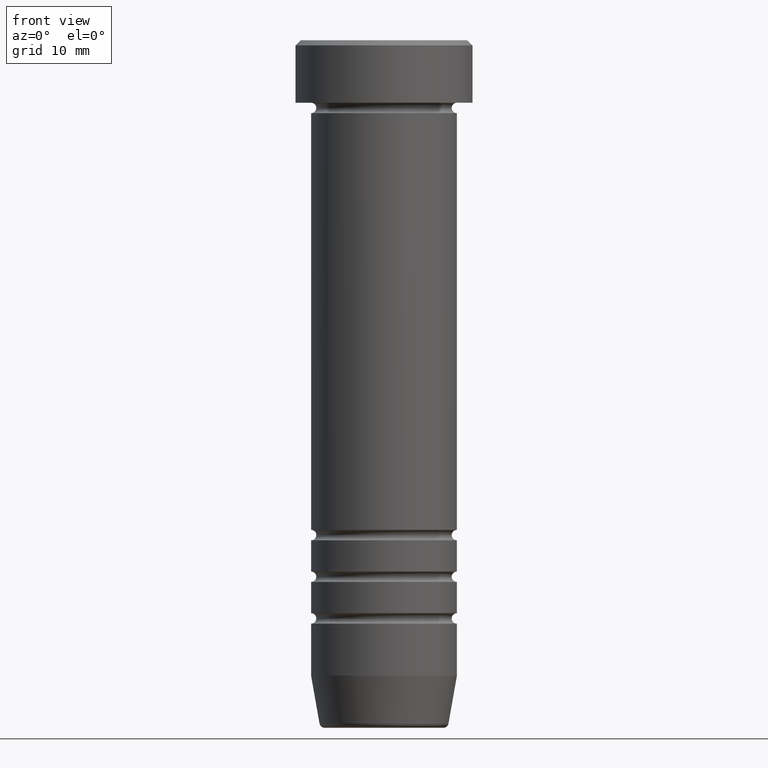
[diagram: clean part render]
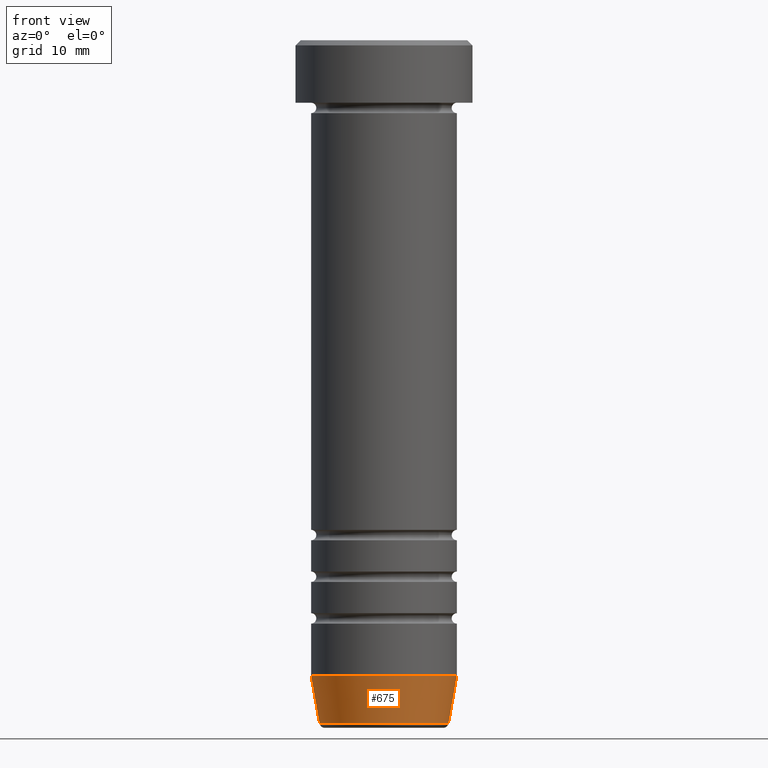
[diagram: same view with one face highlighted and labeled with its STEP entity id]
A machine part, front view. The second image highlights one B-rep face of the part: STEP entity #675.
In plain terms, the highlighted conical surface has half-angle 10 deg.
Its self-contained STEP definition (entity closure, byte-faithful):
#3 = CARTESIAN_POINT ( 'NONE',  ( 0.000000000000000000, 0.000000000000000000, -61.00000000000000711 ) ) ;
#19 = CARTESIAN_POINT ( 'NONE',  ( -6.191219157375138060, 8.077292158965353462E-16, -65.58682408883346682 ) ) ;
#30 = ORIENTED_EDGE ( 'NONE', *, *, #747, .T. ) ;
#32 = CARTESIAN_POINT ( 'NONE',  ( 6.118365096457671015, 0.000000000000000000, -66.00000000000000000 ) ) ;
#129 = EDGE_CURVE ( 'NONE', #204, #864, #881, .T. ) ;
#187 = EDGE_LOOP ( 'NONE', ( #1112, #30, #195, #861 ) ) ;
#195 = ORIENTED_EDGE ( 'NONE', *, *, #725, .T. ) ;
#198 = EDGE_CURVE ( 'NONE', #864, #249, #873, .T. ) ;
#204 = VERTEX_POINT ( 'NONE', #19 ) ;
#249 = VERTEX_POINT ( 'NONE', #658 ) ;
#269 = AXIS2_PLACEMENT_3D ( 'NONE', #677, #586, #702 ) ;
#275 = DIRECTION ( 'NONE',  ( 1.000000000000000000, 0.000000000000000000, 0.000000000000000000 ) ) ;
#309 = CARTESIAN_POINT ( 'NONE',  ( 0.000000000000000000, 0.000000000000000000, -66.00000000000000000 ) ) ;
#350 = CIRCLE ( 'NONE', #269, 6.191219157375137172 ) ;
#380 = DIRECTION ( 'NONE',  ( 1.000000000000000000, 0.000000000000000000, 0.000000000000000000 ) ) ;
#385 = VERTEX_POINT ( 'NONE', #678 ) ;
#392 = DIRECTION ( 'NONE',  ( -0.000000000000000000, -0.000000000000000000, 1.000000000000000000 ) ) ;
#400 = VECTOR ( 'NONE', #539, 1000.000000000000000 ) ;
#490 = FACE_OUTER_BOUND ( 'NONE', #187, .T. ) ;
#539 = DIRECTION ( 'NONE',  ( -0.1736481776669306920, 2.126576849575775305E-17, 0.9848077530122080203 ) ) ;
#586 = DIRECTION ( 'NONE',  ( -0.000000000000000000, -0.000000000000000000, 1.000000000000000000 ) ) ;
#658 = CARTESIAN_POINT ( 'NONE',  ( 6.999999999999997335, 0.000000000000000000, -61.00000000000000711 ) ) ;
#664 = VECTOR ( 'NONE', #835, 1000.000000000000000 ) ;
#675 = ADVANCED_FACE ( 'NONE', ( #490 ), #742, .T. ) ;
#677 = CARTESIAN_POINT ( 'NONE',  ( 0.000000000000000000, 0.000000000000000000, -65.58682408883346682 ) ) ;
#678 = CARTESIAN_POINT ( 'NONE',  ( 6.191219157375138060, 0.000000000000000000, -65.58682408883346682 ) ) ;
#702 = DIRECTION ( 'NONE',  ( -1.000000000000000000, 0.000000000000000000, 0.000000000000000000 ) ) ;
#725 = EDGE_CURVE ( 'NONE', #385, #249, #756, .T. ) ;
#726 = DIRECTION ( 'NONE',  ( -0.000000000000000000, -0.000000000000000000, 1.000000000000000000 ) ) ;
#742 = CONICAL_SURFACE ( 'NONE', #1120, 6.118365096457671015, 0.1745329251994332809 ) ;
#747 = EDGE_CURVE ( 'NONE', #204, #385, #350, .T. ) ;
#756 = LINE ( 'NONE', #32, #664 ) ;
#813 = AXIS2_PLACEMENT_3D ( 'NONE', #3, #726, #275 ) ;
#835 = DIRECTION ( 'NONE',  ( 0.1736481776669306920, 0.000000000000000000, 0.9848077530122080203 ) ) ;
#861 = ORIENTED_EDGE ( 'NONE', *, *, #198, .F. ) ;
#864 = VERTEX_POINT ( 'NONE', #950 ) ;
#873 = CIRCLE ( 'NONE', #813, 6.999999999999997335 ) ;
#881 = LINE ( 'NONE', #897, #400 ) ;
#897 = CARTESIAN_POINT ( 'NONE',  ( -6.118365096457671015, 7.492836231391773665E-16, -66.00000000000000000 ) ) ;
#950 = CARTESIAN_POINT ( 'NONE',  ( -6.999999999999997335, 8.572527594031470232E-16, -61.00000000000000711 ) ) ;
#1112 = ORIENTED_EDGE ( 'NONE', *, *, #129, .F. ) ;
#1120 = AXIS2_PLACEMENT_3D ( 'NONE', #309, #392, #380 ) ;